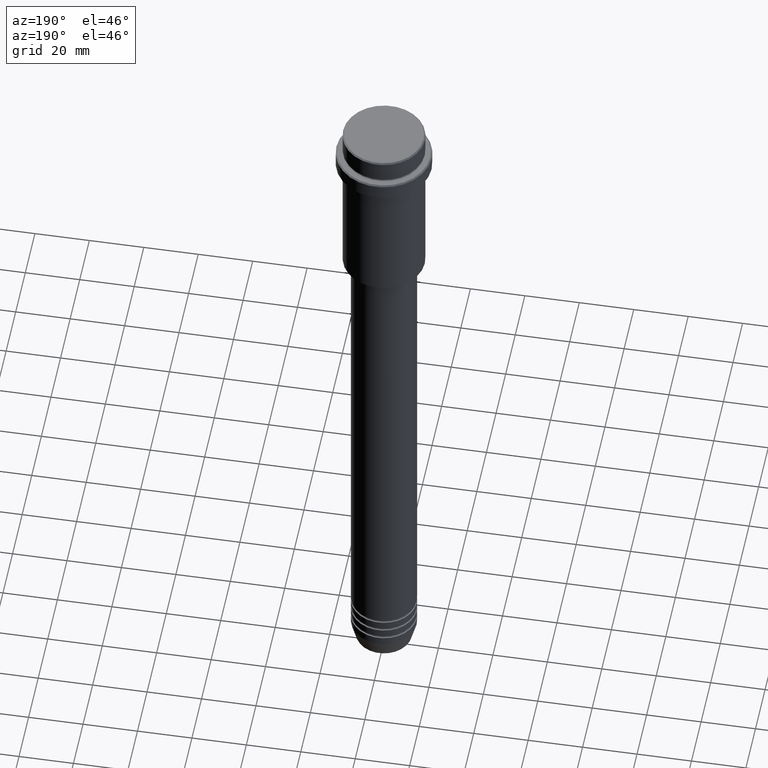
[diagram: clean part render]
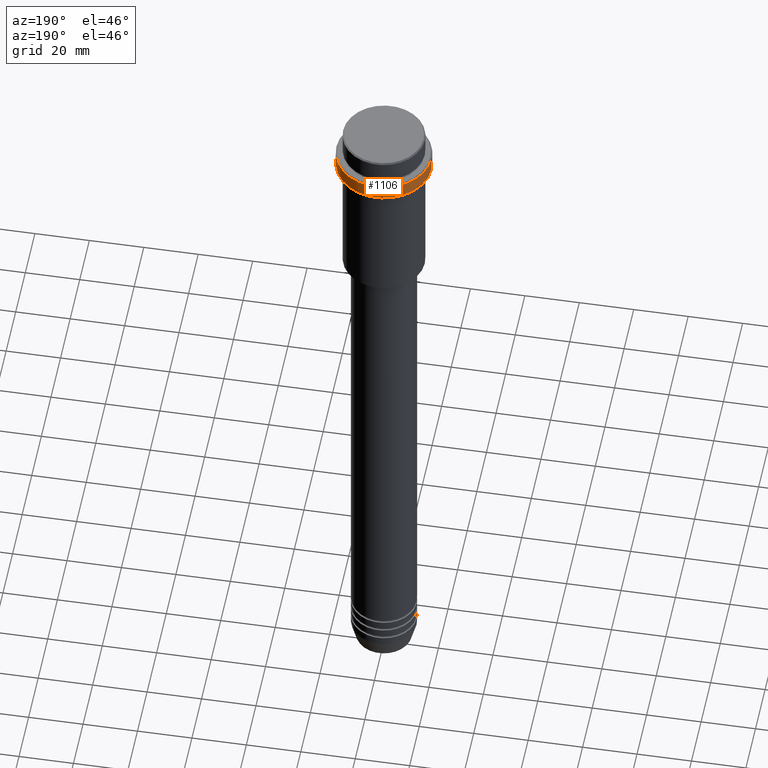
[diagram: same view with one face highlighted and labeled with its STEP entity id]
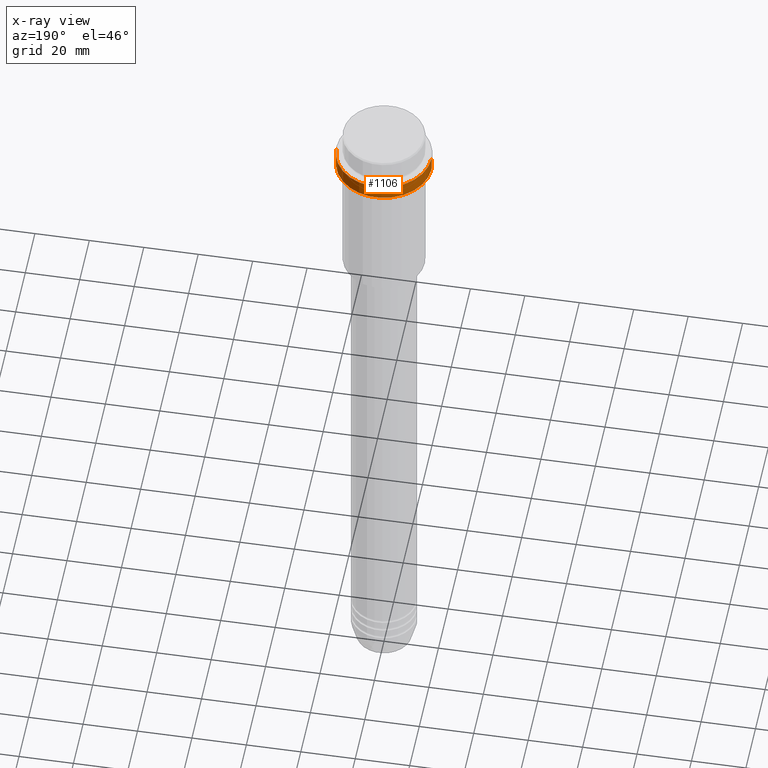
[diagram: x-ray of the same camera — body ghosted, the highlighted face saturated]
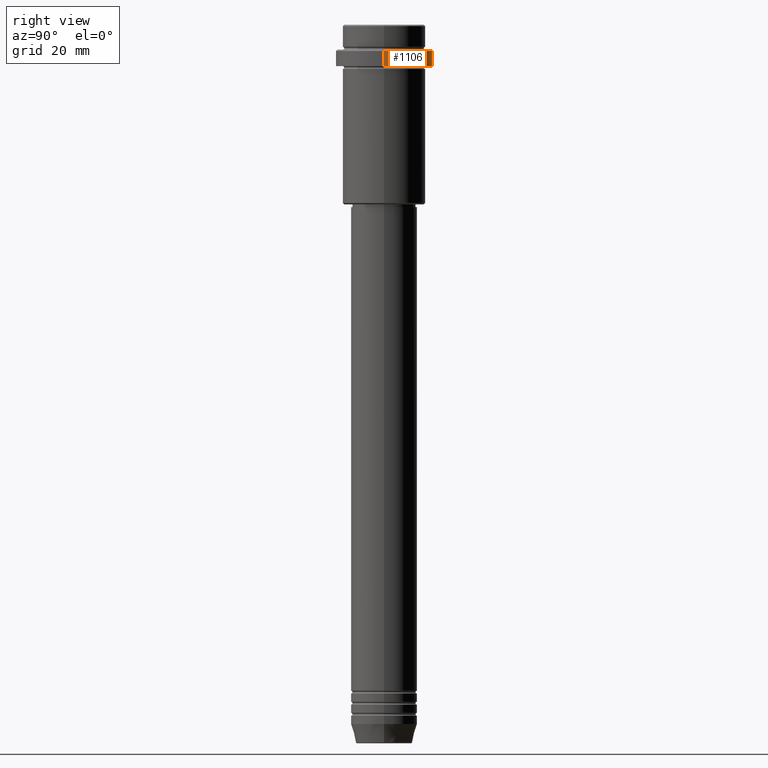
[diagram: same view with one face highlighted and labeled with its STEP entity id]
A machine part, auxiliary view. The second image highlights one B-rep face of the part: STEP entity #1106.
The next image is the same camera in x-ray: the body ghosted, the highlighted face saturated — about 0% of this face is hidden behind the body in this view.
A second angle (right view) of the same face is appended — the face is thin or edge-on in the first view.
In plain terms, the highlighted cylindrical surface (partial cylindrical patch) has radius 17.5 mm, axis along (-0, -0, 1).
Its self-contained STEP definition (entity closure, byte-faithful):
#68 = VECTOR ( 'NONE', #870, 1000.000000000000000 ) ;
#94 = VECTOR ( 'NONE', #219, 1000.000000000000000 ) ;
#100 = LINE ( 'NONE', #654, #68 ) ;
#151 = ORIENTED_EDGE ( 'NONE', *, *, #674, .F. ) ;
#155 = ORIENTED_EDGE ( 'NONE', *, *, #294, .T. ) ;
#161 = AXIS2_PLACEMENT_3D ( 'NONE', #1134, #1255, #700 ) ;
#217 = ORIENTED_EDGE ( 'NONE', *, *, #364, .T. ) ;
#219 = DIRECTION ( 'NONE',  ( -0.000000000000000000, -0.000000000000000000, 1.000000000000000000 ) ) ;
#294 = EDGE_CURVE ( 'NONE', #909, #1378, #774, .T. ) ;
#359 = EDGE_CURVE ( 'NONE', #921, #914, #1000, .T. ) ;
#361 = CYLINDRICAL_SURFACE ( 'NONE', #664, 17.50000000000000000 ) ;
#364 = EDGE_CURVE ( 'NONE', #1378, #921, #1063, .T. ) ;
#421 = CARTESIAN_POINT ( 'NONE',  ( 0.000000000000000000, 0.000000000000000000, -9.500000000000001776 ) ) ;
#500 = DIRECTION ( 'NONE',  ( 1.000000000000000000, 0.000000000000000000, 0.000000000000000000 ) ) ;
#508 = DIRECTION ( 'NONE',  ( 0.000000000000000000, 0.000000000000000000, -1.000000000000000000 ) ) ;
#654 = CARTESIAN_POINT ( 'NONE',  ( 17.50000000000000000, 0.000000000000000000, 0.000000000000000000 ) ) ;
#664 = AXIS2_PLACEMENT_3D ( 'NONE', #1236, #1128, #902 ) ;
#674 = EDGE_CURVE ( 'NONE', #909, #914, #100, .T. ) ;
#700 = DIRECTION ( 'NONE',  ( 1.000000000000000000, 0.000000000000000000, 0.000000000000000000 ) ) ;
#751 = CARTESIAN_POINT ( 'NONE',  ( -17.50000000000000000, 2.143131898507868248E-15, 0.000000000000000000 ) ) ;
#774 = CIRCLE ( 'NONE', #161, 17.50000000000000000 ) ;
#775 = AXIS2_PLACEMENT_3D ( 'NONE', #421, #508, #500 ) ;
#844 = CARTESIAN_POINT ( 'NONE',  ( 17.50000000000000000, 0.000000000000000000, -15.00000000000000178 ) ) ;
#870 = DIRECTION ( 'NONE',  ( -0.000000000000000000, -0.000000000000000000, 1.000000000000000000 ) ) ;
#902 = DIRECTION ( 'NONE',  ( 1.000000000000000000, 0.000000000000000000, 0.000000000000000000 ) ) ;
#909 = VERTEX_POINT ( 'NONE', #844 ) ;
#914 = VERTEX_POINT ( 'NONE', #1101 ) ;
#921 = VERTEX_POINT ( 'NONE', #1335 ) ;
#1000 = CIRCLE ( 'NONE', #775, 17.50000000000000000 ) ;
#1063 = LINE ( 'NONE', #751, #94 ) ;
#1101 = CARTESIAN_POINT ( 'NONE',  ( 17.50000000000000000, 0.000000000000000000, -9.500000000000001776 ) ) ;
#1106 = ADVANCED_FACE ( 'NONE', ( #1225 ), #361, .T. ) ;
#1128 = DIRECTION ( 'NONE',  ( -0.000000000000000000, -0.000000000000000000, 1.000000000000000000 ) ) ;
#1132 = EDGE_LOOP ( 'NONE', ( #155, #217, #1387, #151 ) ) ;
#1134 = CARTESIAN_POINT ( 'NONE',  ( 0.000000000000000000, 0.000000000000000000, -15.00000000000000178 ) ) ;
#1169 = CARTESIAN_POINT ( 'NONE',  ( -17.50000000000000000, 2.143131898507868248E-15, -15.00000000000000178 ) ) ;
#1225 = FACE_OUTER_BOUND ( 'NONE', #1132, .T. ) ;
#1236 = CARTESIAN_POINT ( 'NONE',  ( 0.000000000000000000, 0.000000000000000000, 0.000000000000000000 ) ) ;
#1255 = DIRECTION ( 'NONE',  ( -0.000000000000000000, -0.000000000000000000, 1.000000000000000000 ) ) ;
#1335 = CARTESIAN_POINT ( 'NONE',  ( -17.50000000000000000, 2.143131898507868248E-15, -9.500000000000001776 ) ) ;
#1378 = VERTEX_POINT ( 'NONE', #1169 ) ;
#1387 = ORIENTED_EDGE ( 'NONE', *, *, #359, .T. ) ;